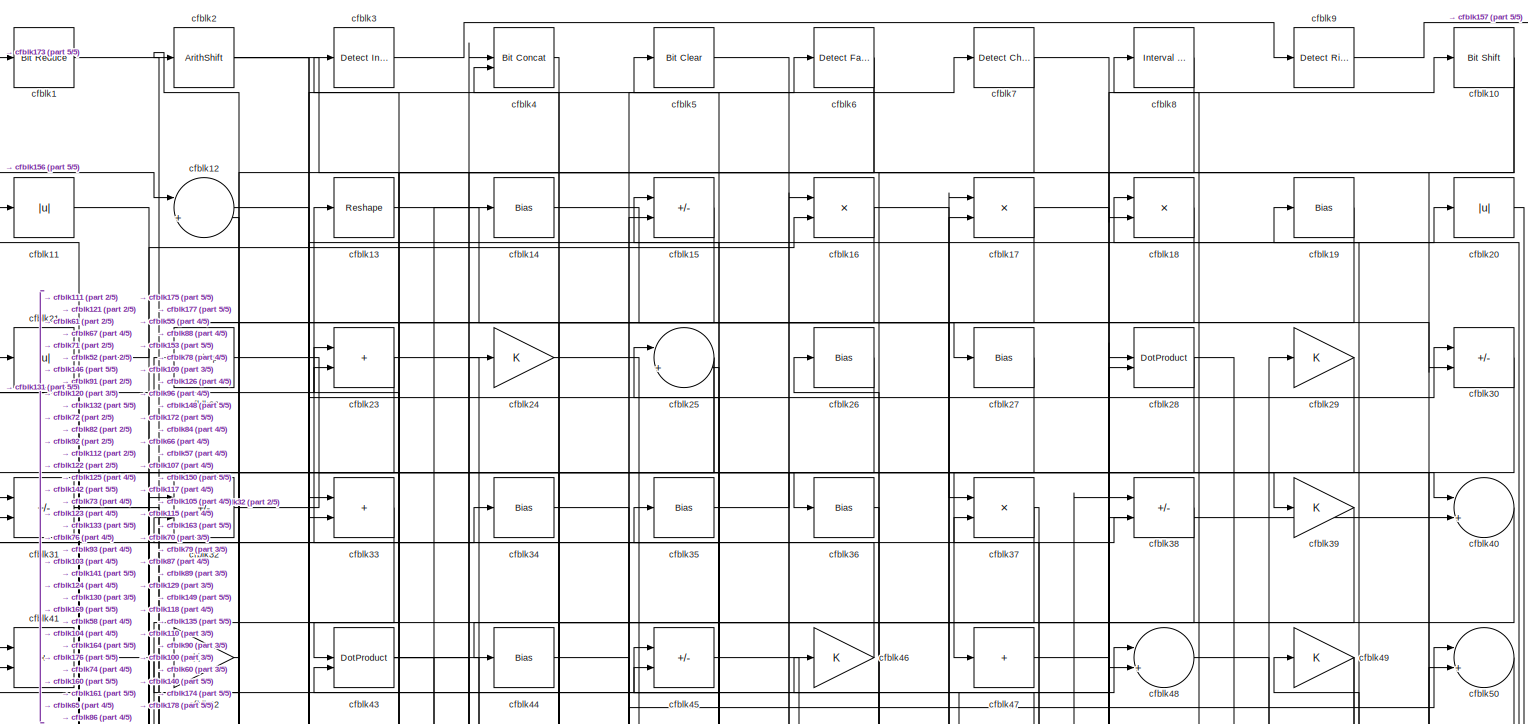
[diagram: root canvas - part 1/5, full width, top band]
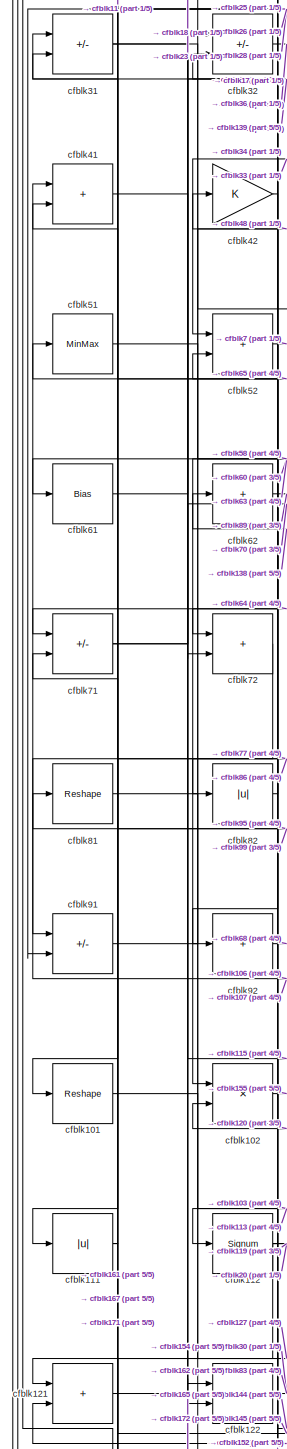
[diagram: root canvas - part 2/5, middle left region]
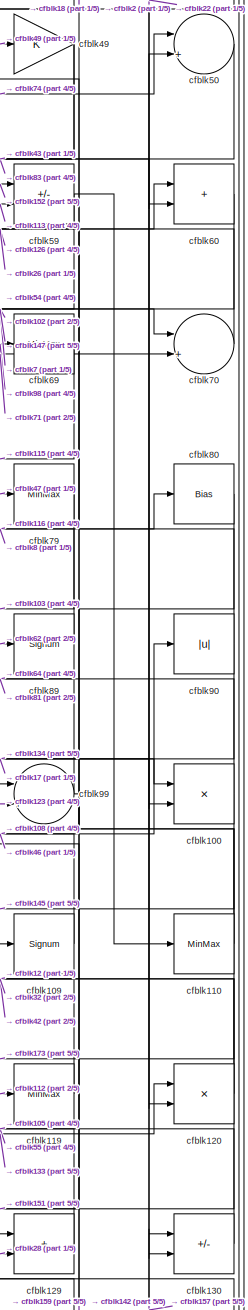
[diagram: root canvas - part 3/5, middle right region]
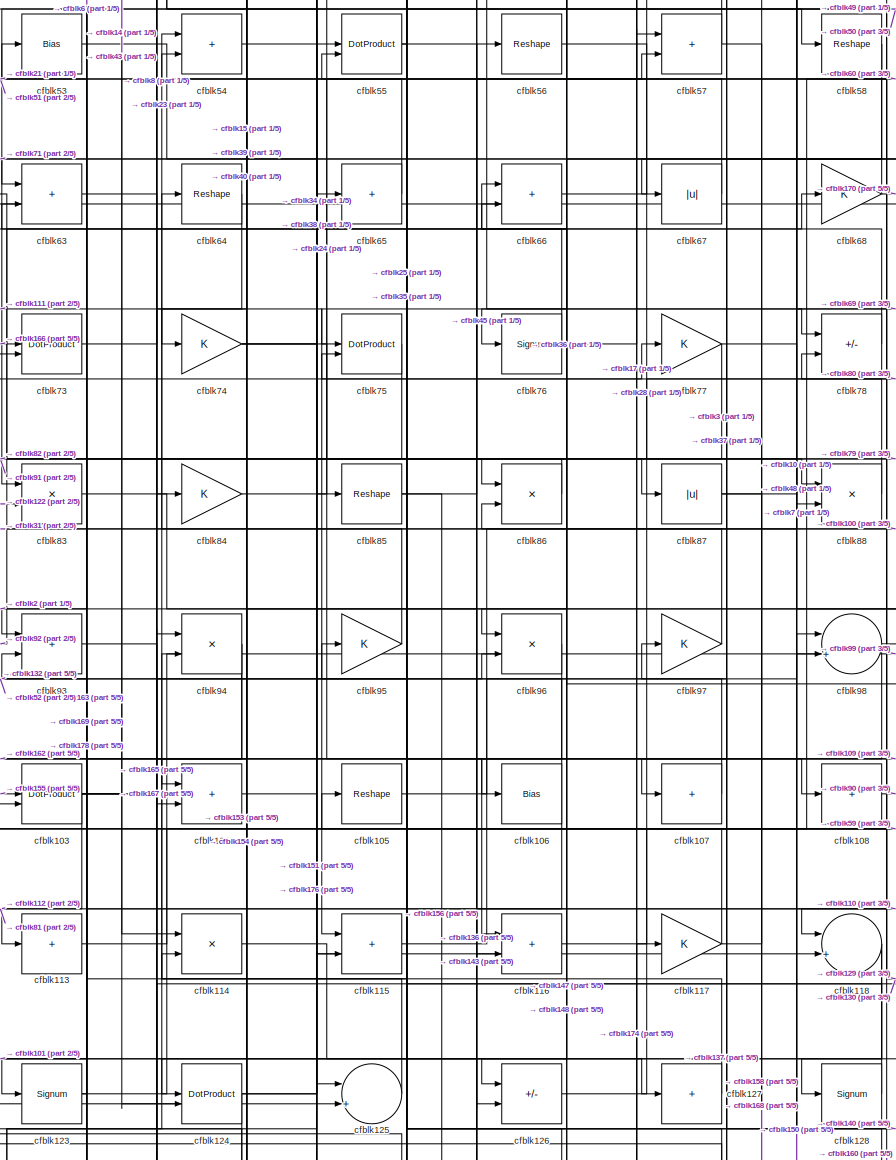
[diagram: root canvas - part 4/5, central region]
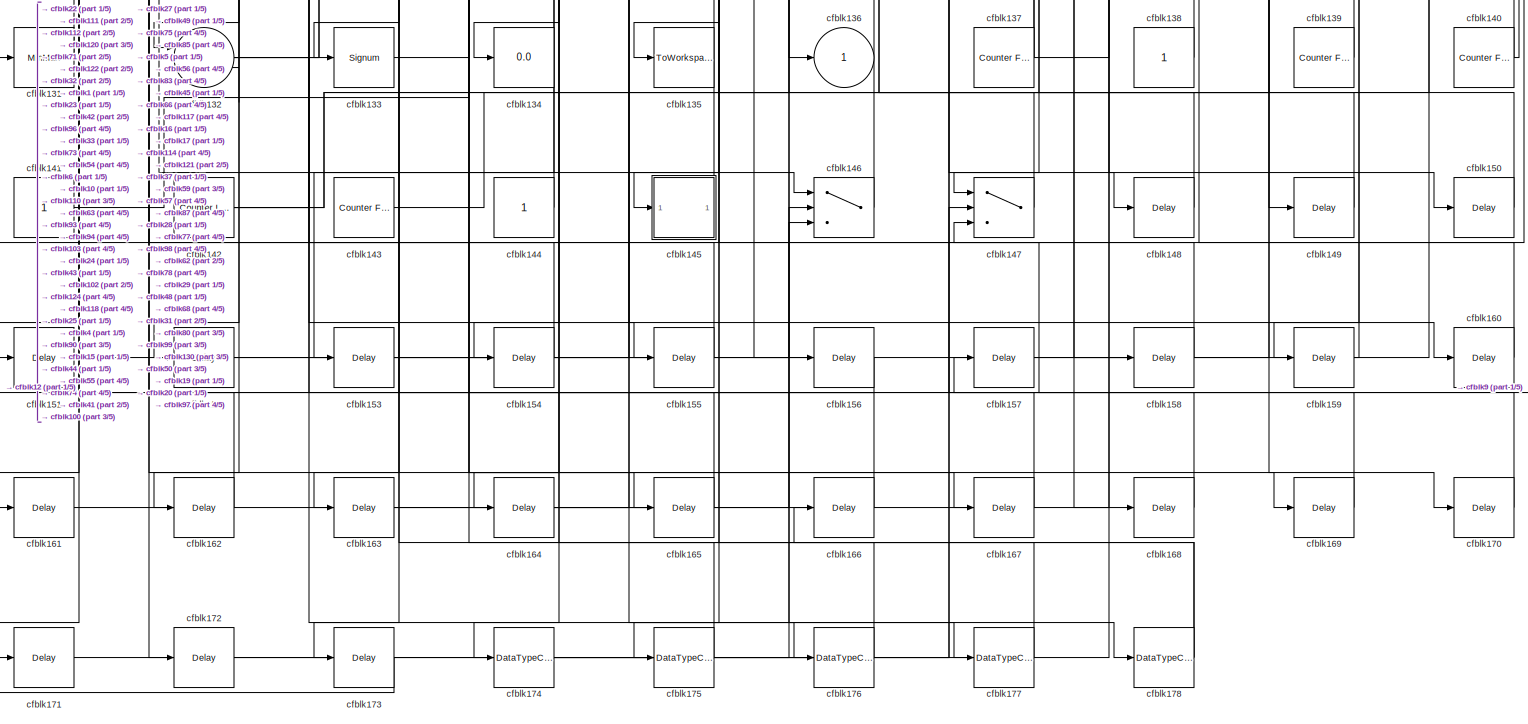
[diagram: root canvas - part 5/5, full width, bottom band]
MODEL slx_1803092d83d6
KIND model
CONFIG AbsTol = auto
CONFIG EnableMultiTasking = off
CONFIG FixedStep = auto
CONFIG MaxStep = auto
CONFIG MinStep = auto
CONFIG RelTol = 1e-3
CONFIG SampleTimeConstraint = Unconstrained
CONFIG SolverName = VariableStepAuto
CONFIG StartTime = 0.0
CONFIG StopTime = 10.0
BLOCK [Reference] cfblk1  REF=hdlsllib/Logic and Bit
Operations/Bit Reduce
  SourceBlock = hdlsllib/Logic and Bit\nOperations/Bit Reduce
  SourceType = Bit Reduce
BLOCK [Reference] cfblk10  REF=hdlsllib/Logic and Bit
Operations/Bit Shift
  SourceBlock = hdlsllib/Logic and Bit\nOperations/Bit Shift
  SourceType = Bit Shift
BLOCK [Product] cfblk100
  Inputs = */
  RndMeth = Zero
  SaturateOnIntegerOverflow = on
BLOCK [Reshape] cfblk101
BLOCK [Product] cfblk102
  Inputs = */
  RndMeth = Zero
  SaturateOnIntegerOverflow = on
BLOCK [DotProduct] cfblk103
  OutDataTypeStr = Inherit: Inherit via internal rule
BLOCK [Sum] cfblk104
  IconShape = rectangular
BLOCK [Reshape] cfblk105
BLOCK [Bias] cfblk106
  Bias = 0.0
  SaturateOnIntegerOverflow = off
BLOCK [Sum] cfblk107
  IconShape = rectangular
  Inputs = +
BLOCK [Sum] cfblk108
  IconShape = rectangular
  Inputs = +
BLOCK [Signum] cfblk109
BLOCK [Abs] cfblk11
  SaturateOnIntegerOverflow = off
BLOCK [MinMax] cfblk110
BLOCK [Abs] cfblk111
  SaturateOnIntegerOverflow = off
BLOCK [Signum] cfblk112
BLOCK [Sum] cfblk113
  IconShape = rectangular
  Inputs = +
BLOCK [Product] cfblk114
  Inputs = */
  RndMeth = Zero
  SaturateOnIntegerOverflow = on
BLOCK [Sum] cfblk115
  IconShape = rectangular
BLOCK [Sum] cfblk116
  IconShape = rectangular
BLOCK [Gain] cfblk117
BLOCK [Sum] cfblk118
  Inputs = |++
BLOCK [MinMax] cfblk119
BLOCK [Sum] cfblk12
  Inputs = |++
BLOCK [Product] cfblk120
  Inputs = */
  RndMeth = Zero
  SaturateOnIntegerOverflow = on
BLOCK [Sum] cfblk121
  IconShape = rectangular
BLOCK [Sum] cfblk122
  IconShape = rectangular
BLOCK [Signum] cfblk123
BLOCK [DotProduct] cfblk124
  OutDataTypeStr = Inherit: Inherit via internal rule
BLOCK [Sum] cfblk125
  Inputs = |++
BLOCK [Sum] cfblk126
  IconShape = rectangular
  Inputs = +-
BLOCK [Sum] cfblk127
  IconShape = rectangular
  Inputs = +
BLOCK [Signum] cfblk128
BLOCK [Sum] cfblk129
  IconShape = rectangular
BLOCK [Reshape] cfblk13
BLOCK [Sum] cfblk130
  IconShape = rectangular
  Inputs = +-
BLOCK [MinMax] cfblk131
BLOCK [Sum] cfblk132
  Inputs = |++
BLOCK [Signum] cfblk133
BLOCK [Display] cfblk134
  Decimation = 1
BLOCK [ToWorkspace] cfblk135
  MaxDataPoints = inf
  SampleTime = -1
  SaveFormat = Timeseries
  VariableName = simout
BLOCK [Outport] cfblk136
  VectorParamsAs1DForOutWhenUnconnected = off
BLOCK [Reference] cfblk137  REF=hdlsllib/Sources/Counter
Free-Running
  SourceBlock = hdlsllib/Sources/Counter\nFree-Running
  SourceType = Counter Free-Running
BLOCK [Constant] cfblk138
  SampleTime = -1
BLOCK [Reference] cfblk139  REF=hdlsllib/Sources/Counter
Free-Running
  SourceBlock = hdlsllib/Sources/Counter\nFree-Running
  SourceType = Counter Free-Running
BLOCK [Bias] cfblk14
  Bias = 0.0
  SaturateOnIntegerOverflow = off
BLOCK [Reference] cfblk140  REF=hdlsllib/Sources/Counter
Free-Running
  SourceBlock = hdlsllib/Sources/Counter\nFree-Running
  SourceType = Counter Free-Running
BLOCK [Constant] cfblk141
  SampleTime = -1
BLOCK [Reference] cfblk142  REF=hdlsllib/Sources/Counter
Limited
  SourceBlock = hdlsllib/Sources/Counter\nLimited
  SourceType = Counter Limited
BLOCK [Reference] cfblk143  REF=hdlsllib/Sources/Counter
Free-Running
  SourceBlock = hdlsllib/Sources/Counter\nFree-Running
  SourceType = Counter Free-Running
BLOCK [Constant] cfblk144
  SampleTime = -1
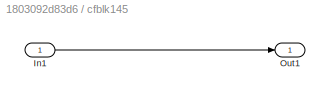
BLOCK [SubSystem] cfblk145
  LibrarySourceBlock = hdlsllib/Ports &\nSubsystems/Subsystem
BLOCK [Inport] cfblk145/In1
BLOCK [Outport] cfblk145/Out1
BLOCK [Switch] cfblk146
  InputSameDT = off
  SaturateOnIntegerOverflow = off
BLOCK [Switch] cfblk147
  InputSameDT = off
  SaturateOnIntegerOverflow = off
BLOCK [Delay] cfblk148
  InputPortMap = u0
  SampleTime = 1
BLOCK [Delay] cfblk149
  InputPortMap = u0
  SampleTime = 1
BLOCK [Sum] cfblk15
  IconShape = rectangular
  Inputs = +-
BLOCK [Delay] cfblk150
  InputPortMap = u0
  SampleTime = 1
BLOCK [Delay] cfblk151
  InputPortMap = u0
  SampleTime = 1
BLOCK [Delay] cfblk152
  InputPortMap = u0
  SampleTime = 1
BLOCK [Delay] cfblk153
  InputPortMap = u0
  SampleTime = 1
BLOCK [Delay] cfblk154
  InputPortMap = u0
  SampleTime = 1
BLOCK [Delay] cfblk155
  InputPortMap = u0
  SampleTime = 1
BLOCK [Delay] cfblk156
  InputPortMap = u0
  SampleTime = 1
BLOCK [Delay] cfblk157
  InputPortMap = u0
  SampleTime = 1
BLOCK [Delay] cfblk158
  InputPortMap = u0
  SampleTime = 1
BLOCK [Delay] cfblk159
  InputPortMap = u0
  SampleTime = 1
BLOCK [Product] cfblk16
  Inputs = */
  RndMeth = Zero
  SaturateOnIntegerOverflow = on
BLOCK [Delay] cfblk160
  InputPortMap = u0
  SampleTime = 1
BLOCK [Delay] cfblk161
  InputPortMap = u0
  SampleTime = 1
BLOCK [Delay] cfblk162
  InputPortMap = u0
  SampleTime = 1
BLOCK [Delay] cfblk163
  InputPortMap = u0
  SampleTime = 1
BLOCK [Delay] cfblk164
  InputPortMap = u0
  SampleTime = 1
BLOCK [Delay] cfblk165
  InputPortMap = u0
  SampleTime = 1
BLOCK [Delay] cfblk166
  InputPortMap = u0
  SampleTime = 1
BLOCK [Delay] cfblk167
  InputPortMap = u0
  SampleTime = 1
BLOCK [Delay] cfblk168
  InputPortMap = u0
  SampleTime = 1
BLOCK [Delay] cfblk169
  InputPortMap = u0
  SampleTime = 1
BLOCK [Product] cfblk17
  Inputs = */
  RndMeth = Zero
  SaturateOnIntegerOverflow = on
BLOCK [Delay] cfblk170
  InputPortMap = u0
  SampleTime = 1
BLOCK [Delay] cfblk171
  InputPortMap = u0
  SampleTime = 1
BLOCK [Delay] cfblk172
  InputPortMap = u0
  SampleTime = 1
BLOCK [Delay] cfblk173
  InputPortMap = u0
  SampleTime = 1
BLOCK [DataTypeConversion] cfblk174
  RndMeth = Floor
  SaturateOnIntegerOverflow = off
BLOCK [DataTypeConversion] cfblk175
  OutDataTypeStr = uint8
  RndMeth = Floor
  SaturateOnIntegerOverflow = off
BLOCK [DataTypeConversion] cfblk176
  OutDataTypeStr = uint8
  RndMeth = Floor
  SaturateOnIntegerOverflow = off
BLOCK [DataTypeConversion] cfblk177
  OutDataTypeStr = boolean
  RndMeth = Floor
  SaturateOnIntegerOverflow = off
BLOCK [DataTypeConversion] cfblk178
  RndMeth = Floor
  SaturateOnIntegerOverflow = off
BLOCK [Product] cfblk18
  Inputs = */
  RndMeth = Zero
  SaturateOnIntegerOverflow = on
BLOCK [Bias] cfblk19
  Bias = 0.0
  SaturateOnIntegerOverflow = off
BLOCK [ArithShift] cfblk2
  BitShiftNumber = 8
  InputPortMap = u0
BLOCK [Abs] cfblk20
  SaturateOnIntegerOverflow = off
BLOCK [Abs] cfblk21
  SaturateOnIntegerOverflow = off
BLOCK [Reshape] cfblk22
BLOCK [Sum] cfblk23
  IconShape = rectangular
BLOCK [Gain] cfblk24
BLOCK [Sum] cfblk25
  Inputs = |++
BLOCK [Bias] cfblk26
  Bias = 0.0
  SaturateOnIntegerOverflow = off
BLOCK [Bias] cfblk27
  Bias = 0.0
  SaturateOnIntegerOverflow = off
BLOCK [DotProduct] cfblk28
  OutDataTypeStr = Inherit: Inherit via internal rule
BLOCK [Gain] cfblk29
BLOCK [Reference] cfblk3  REF=simulink/Logic and Bit
Operations/Detect
Increase
  LibrarySourceBlock = hdlsllib/Logic and Bit\nOperations/Detect\nIncrease
  SourceBlock = simulink/Logic and Bit\nOperations/Detect\nIncrease
  SourceType = Detect Increase
BLOCK [Sum] cfblk30
  IconShape = rectangular
  Inputs = +-
BLOCK [Sum] cfblk31
  IconShape = rectangular
  Inputs = +-
BLOCK [Sum] cfblk32
  IconShape = rectangular
  Inputs = +-
BLOCK [Sum] cfblk33
  IconShape = rectangular
BLOCK [Bias] cfblk34
  Bias = 0.0
  SaturateOnIntegerOverflow = off
BLOCK [Bias] cfblk35
  Bias = 0.0
  SaturateOnIntegerOverflow = off
BLOCK [Bias] cfblk36
  Bias = 0.0
  SaturateOnIntegerOverflow = off
BLOCK [Product] cfblk37
  Inputs = */
  RndMeth = Zero
  SaturateOnIntegerOverflow = on
BLOCK [Sum] cfblk38
  IconShape = rectangular
  Inputs = +-
BLOCK [Gain] cfblk39
BLOCK [Reference] cfblk4  REF=hdlsllib/Logic and Bit
Operations/Bit Concat
  SourceBlock = hdlsllib/Logic and Bit\nOperations/Bit Concat
  SourceType = Bit Concat
BLOCK [Sum] cfblk40
  Inputs = |++
BLOCK [Sum] cfblk41
  IconShape = rectangular
BLOCK [Gain] cfblk42
BLOCK [DotProduct] cfblk43
  OutDataTypeStr = Inherit: Inherit via internal rule
BLOCK [Bias] cfblk44
  Bias = 0.0
  SaturateOnIntegerOverflow = off
BLOCK [Sum] cfblk45
  IconShape = rectangular
  Inputs = +-
BLOCK [Gain] cfblk46
BLOCK [Sum] cfblk47
  IconShape = rectangular
  Inputs = +
BLOCK [Sum] cfblk48
  Inputs = |++
BLOCK [Gain] cfblk49
BLOCK [Reference] cfblk5  REF=simulink/Logic and Bit
Operations/Bit Clear
  LibrarySourceBlock = hdlsllib/Logic and Bit\nOperations/Bit Clear
  SourceBlock = simulink/Logic and Bit\nOperations/Bit Clear
  SourceType = Bit Clear
BLOCK [Sum] cfblk50
  Inputs = |++
BLOCK [MinMax] cfblk51
BLOCK [Sum] cfblk52
  IconShape = rectangular
BLOCK [Bias] cfblk53
  Bias = 0.0
  SaturateOnIntegerOverflow = off
BLOCK [Sum] cfblk54
  IconShape = rectangular
BLOCK [DotProduct] cfblk55
  OutDataTypeStr = Inherit: Inherit via internal rule
BLOCK [Reshape] cfblk56
BLOCK [Sum] cfblk57
  IconShape = rectangular
BLOCK [Reshape] cfblk58
BLOCK [Sum] cfblk59
  IconShape = rectangular
  Inputs = +-
BLOCK [Reference] cfblk6  REF=hdlsllib/Logic and Bit
Operations/Detect Fall
Nonpositive
  SourceBlock = hdlsllib/Logic and Bit\nOperations/Detect Fall\nNonpositive
  SourceType = Detect Fall Nonpositive
BLOCK [Sum] cfblk60
  IconShape = rectangular
BLOCK [Bias] cfblk61
  Bias = 0.0
  SaturateOnIntegerOverflow = off
BLOCK [Sum] cfblk62
  IconShape = rectangular
  Inputs = +
BLOCK [Sum] cfblk63
  IconShape = rectangular
BLOCK [Reshape] cfblk64
BLOCK [Sum] cfblk65
  IconShape = rectangular
  Inputs = +
BLOCK [Sum] cfblk66
  IconShape = rectangular
BLOCK [Abs] cfblk67
  SaturateOnIntegerOverflow = off
BLOCK [Gain] cfblk68
BLOCK [MinMax] cfblk69
BLOCK [Reference] cfblk7  REF=simulink/Logic and Bit
Operations/Detect
Change
  LibrarySourceBlock = hdlsllib/Logic and Bit\nOperations/Detect\nChange
  SourceBlock = simulink/Logic and Bit\nOperations/Detect\nChange
  SourceType = Detect Change
BLOCK [Sum] cfblk70
  Inputs = |++
BLOCK [Sum] cfblk71
  IconShape = rectangular
  Inputs = +-
BLOCK [Sum] cfblk72
  IconShape = rectangular
BLOCK [DotProduct] cfblk73
  OutDataTypeStr = Inherit: Inherit via internal rule
BLOCK [Gain] cfblk74
BLOCK [DotProduct] cfblk75
  OutDataTypeStr = Inherit: Inherit via internal rule
BLOCK [Signum] cfblk76
BLOCK [Gain] cfblk77
BLOCK [Sum] cfblk78
  IconShape = rectangular
  Inputs = +-
BLOCK [MinMax] cfblk79
BLOCK [Reference] cfblk8  REF=hdlsllib/Logic and Bit
Operations/Interval Test
  SourceBlock = hdlsllib/Logic and Bit\nOperations/Interval Test
  SourceType = Interval Test
BLOCK [Bias] cfblk80
  Bias = 0.0
  SaturateOnIntegerOverflow = off
BLOCK [Reshape] cfblk81
BLOCK [Abs] cfblk82
  SaturateOnIntegerOverflow = off
BLOCK [Product] cfblk83
  Inputs = */
  RndMeth = Zero
  SaturateOnIntegerOverflow = on
BLOCK [Gain] cfblk84
BLOCK [Reshape] cfblk85
BLOCK [Product] cfblk86
  Inputs = */
  RndMeth = Zero
  SaturateOnIntegerOverflow = on
BLOCK [Abs] cfblk87
  SaturateOnIntegerOverflow = off
BLOCK [Product] cfblk88
  Inputs = */
  RndMeth = Zero
  SaturateOnIntegerOverflow = on
BLOCK [Signum] cfblk89
BLOCK [Reference] cfblk9  REF=hdlsllib/Logic and Bit
Operations/Detect Rise
Nonnegative
  SourceBlock = hdlsllib/Logic and Bit\nOperations/Detect Rise\nNonnegative
  SourceType = Detect Rise Nonnegative
BLOCK [Abs] cfblk90
  SaturateOnIntegerOverflow = off
BLOCK [Sum] cfblk91
  IconShape = rectangular
  Inputs = +-
BLOCK [Sum] cfblk92
  IconShape = rectangular
  Inputs = +
BLOCK [Sum] cfblk93
  IconShape = rectangular
BLOCK [Product] cfblk94
  Inputs = */
  RndMeth = Zero
  SaturateOnIntegerOverflow = on
BLOCK [Gain] cfblk95
BLOCK [Product] cfblk96
  Inputs = */
  RndMeth = Zero
  SaturateOnIntegerOverflow = on
BLOCK [Gain] cfblk97
BLOCK [Sum] cfblk98
  Inputs = |++
BLOCK [Sum] cfblk99
  Inputs = |++
NET cfblk100:1 -> cfblk145:1, cfblk64:1
LINE cfblk101:1 -> cfblk127:1
LINE cfblk102:1 -> cfblk155:1
NET cfblk103:1 -> cfblk112:1, cfblk114:1, cfblk14:1, cfblk167:1, cfblk96:2
LINE cfblk104:1 -> cfblk125:1
LINE cfblk105:1 -> cfblk40:2
NET cfblk106:1 -> cfblk116:2, cfblk52:2
LINE cfblk107:1 -> cfblk41:1
LINE cfblk108:1 -> cfblk90:1
LINE cfblk109:1 -> cfblk46:1
NET cfblk10:1 -> cfblk133:1, cfblk18:2
NET cfblk110:1 -> cfblk173:1, cfblk18:1, cfblk54:2
NET cfblk111:1 -> cfblk11:1, cfblk171:1
NET cfblk112:1 -> cfblk119:1, cfblk161:1, cfblk20:1, cfblk77:1
LINE cfblk113:1 -> cfblk59:2
LINE cfblk114:1 -> cfblk126:2
LINE cfblk115:1 -> cfblk48:2
LINE cfblk116:1 -> cfblk80:1
NET cfblk117:1 -> cfblk35:1, cfblk38:1
NET cfblk118:1 -> cfblk128:1, cfblk154:1
LINE cfblk119:1 -> cfblk32:2
LINE cfblk11:1 -> cfblk30:2
NET cfblk120:1 -> cfblk12:2, cfblk151:1, cfblk42:1
LINE cfblk121:1 -> cfblk165:1
NET cfblk122:1 -> cfblk30:1, cfblk83:2
NET cfblk123:1 -> cfblk23:2, cfblk99:2
NET cfblk124:1 -> cfblk118:2, cfblk153:1, cfblk38:2
LINE cfblk125:1 -> cfblk94:2
LINE cfblk126:1 -> cfblk60:1
LINE cfblk127:1 -> cfblk53:1
LINE cfblk128:1 -> cfblk95:1
LINE cfblk129:1 -> cfblk105:1
LINE cfblk12:1 -> cfblk39:1
LINE cfblk130:1 -> cfblk55:2
LINE cfblk131:1 -> cfblk22:1
NET cfblk132:1 -> cfblk177:1, cfblk54:1, cfblk6:1
LINE cfblk133:1 -> cfblk120:1
NET cfblk137:1 -> cfblk114:2, cfblk121:2, cfblk98:2
LINE cfblk138:1 -> cfblk62:1
LINE cfblk139:1 -> cfblk31:2
LINE cfblk13:1 -> cfblk37:1
NET cfblk140:1 -> cfblk19:1, cfblk97:1
LINE cfblk141:1 -> cfblk24:1
NET cfblk142:1 -> cfblk29:1, cfblk33:1, cfblk50:2
LINE cfblk143:1 -> cfblk56:1
LINE cfblk144:1 -> cfblk102:2
LINE cfblk145/In1:1 -> cfblk145/Out1:1
LINE cfblk145:1 -> cfblk41:2
LINE cfblk146:1 -> cfblk45:1
LINE cfblk147:1 -> cfblk66:1
LINE cfblk148:1 -> cfblk66:2
LINE cfblk149:1 -> cfblk45:2
LINE cfblk14:1 -> cfblk27:1
LINE cfblk150:1 -> cfblk37:2
LINE cfblk151:1 -> cfblk55:1
LINE cfblk152:1 -> cfblk59:1
LINE cfblk153:1 -> cfblk16:1
LINE cfblk154:1 -> cfblk122:1
LINE cfblk155:1 -> cfblk103:1
LINE cfblk156:1 -> cfblk12:1
LINE cfblk157:1 -> cfblk130:1
LINE cfblk158:1 -> cfblk75:2
LINE cfblk159:1 -> cfblk99:1
LINE cfblk15:1 -> cfblk74:1
LINE cfblk160:1 -> cfblk78:2
LINE cfblk161:1 -> cfblk15:2
LINE cfblk162:1 -> cfblk32:1
LINE cfblk163:1 -> cfblk28:2
LINE cfblk164:1 -> cfblk146:2
LINE cfblk165:1 -> cfblk94:1
LINE cfblk166:1 -> cfblk73:1
LINE cfblk167:1 -> cfblk71:2
LINE cfblk168:1 -> cfblk147:2
LINE cfblk169:1 -> cfblk63:2
NET cfblk16:1 -> cfblk148:1, cfblk43:1
LINE cfblk170:1 -> cfblk147:3
LINE cfblk171:1 -> cfblk146:3
LINE cfblk172:1 -> cfblk17:2
LINE cfblk173:1 -> cfblk1:1
NET cfblk174:1 -> cfblk117:1, cfblk98:1
LINE cfblk175:1 -> cfblk4:1
LINE cfblk176:1 -> cfblk4:2
LINE cfblk177:1 -> cfblk5:1
NET cfblk178:1 -> cfblk166:1, cfblk93:2
NET cfblk17:1 -> cfblk100:1, cfblk92:1
LINE cfblk18:1 -> cfblk122:2
LINE cfblk19:1 -> cfblk33:2
LINE cfblk1:1 -> cfblk146:1
LINE cfblk20:1 -> cfblk131:1
LINE cfblk21:1 -> cfblk16:2
LINE cfblk22:1 -> cfblk120:2
NET cfblk23:1 -> cfblk132:1, cfblk58:1
LINE cfblk24:1 -> cfblk86:1
NET cfblk25:1 -> cfblk121:1, cfblk164:1
LINE cfblk26:1 -> cfblk72:2
LINE cfblk27:1 -> cfblk175:1
NET cfblk28:1 -> cfblk129:2, cfblk61:1
LINE cfblk29:1 -> cfblk91:2
NET cfblk2:1 -> cfblk100:2, cfblk125:2, cfblk60:2
LINE cfblk30:1 -> cfblk47:1
NET cfblk31:1 -> cfblk106:1, cfblk115:2
LINE cfblk32:1 -> cfblk36:1
LINE cfblk33:1 -> cfblk52:1
LINE cfblk34:1 -> cfblk65:1
LINE cfblk35:1 -> cfblk40:1
LINE cfblk36:1 -> cfblk96:1
NET cfblk37:1 -> cfblk107:1, cfblk73:2
LINE cfblk38:1 -> cfblk44:1
LINE cfblk39:1 -> cfblk124:1
LINE cfblk3:1 -> cfblk9:1
LINE cfblk40:1 -> cfblk104:1
LINE cfblk41:1 -> cfblk172:1
LINE cfblk42:1 -> cfblk152:1
NET cfblk43:1 -> cfblk124:2, cfblk130:2, cfblk169:1
LINE cfblk44:1 -> cfblk160:1
LINE cfblk45:1 -> cfblk78:1
LINE cfblk46:1 -> cfblk13:1
LINE cfblk47:1 -> cfblk79:1
LINE cfblk48:1 -> cfblk149:1
NET cfblk49:1 -> cfblk118:1, cfblk135:1
LINE cfblk4:1 -> cfblk174:1
LINE cfblk50:1 -> cfblk83:1
LINE cfblk51:1 -> cfblk63:1
LINE cfblk52:1 -> cfblk7:1
LINE cfblk53:1 -> cfblk85:1
LINE cfblk54:1 -> cfblk88:2
NET cfblk55:1 -> cfblk25:2, cfblk87:1
LINE cfblk56:1 -> cfblk88:1
NET cfblk57:1 -> cfblk158:1, cfblk3:1
NET cfblk58:1 -> cfblk71:1, cfblk76:1
NET cfblk59:1 -> cfblk110:1, cfblk147:1
LINE cfblk5:1 -> cfblk178:1
LINE cfblk60:1 -> cfblk102:1
LINE cfblk61:1 -> cfblk23:1
LINE cfblk62:1 -> cfblk89:1
LINE cfblk63:1 -> cfblk84:1
LINE cfblk64:1 -> cfblk111:1
LINE cfblk65:1 -> cfblk51:1
LINE cfblk66:1 -> cfblk28:1
LINE cfblk67:1 -> cfblk21:1
NET cfblk68:1 -> cfblk170:1, cfblk67:1
LINE cfblk69:1 -> cfblk115:1
NET cfblk6:1 -> cfblk72:1, cfblk93:1
LINE cfblk70:1 -> cfblk26:1
NET cfblk71:1 -> cfblk34:1, cfblk70:2
LINE cfblk72:1 -> cfblk101:1
LINE cfblk73:1 -> cfblk75:1
NET cfblk74:1 -> cfblk109:1, cfblk176:1, cfblk50:1
LINE cfblk75:1 -> cfblk123:1
NET cfblk76:1 -> cfblk43:2, cfblk57:1
NET cfblk77:1 -> cfblk150:1, cfblk91:1
LINE cfblk78:1 -> cfblk15:1
LINE cfblk79:1 -> cfblk103:2
NET cfblk7:1 -> cfblk126:1, cfblk70:1
LINE cfblk80:1 -> cfblk159:1
LINE cfblk81:1 -> cfblk113:1
LINE cfblk82:1 -> cfblk2:1
LINE cfblk83:1 -> cfblk136:1
LINE cfblk84:1 -> cfblk17:1
NET cfblk85:1 -> cfblk156:1, cfblk57:2
LINE cfblk86:1 -> cfblk82:1
NET cfblk87:1 -> cfblk10:1, cfblk168:1
LINE cfblk88:1 -> cfblk25:1
LINE cfblk89:1 -> cfblk8:1
LINE cfblk8:1 -> cfblk104:2
NET cfblk90:1 -> cfblk134:1, cfblk49:1
LINE cfblk91:1 -> cfblk48:1
LINE cfblk92:1 -> cfblk68:1
LINE cfblk93:1 -> cfblk108:1
NET cfblk94:1 -> cfblk132:2, cfblk163:1
LINE cfblk95:1 -> cfblk31:1
LINE cfblk96:1 -> cfblk162:1
LINE cfblk97:1 -> cfblk86:2
NET cfblk98:1 -> cfblk116:1, cfblk69:1
NET cfblk99:1 -> cfblk129:1, cfblk81:1
LINE cfblk9:1 -> cfblk157:1
note: NET lines group one-source signal fan-out (src -> all destinations, sorted); 1:1 wires keep LINE
